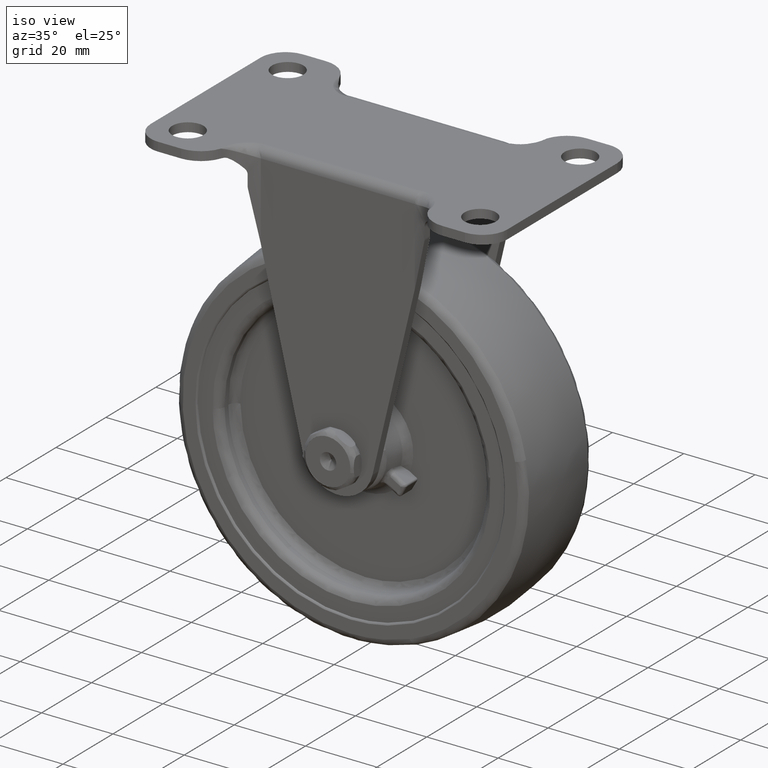
[diagram: clean part render]
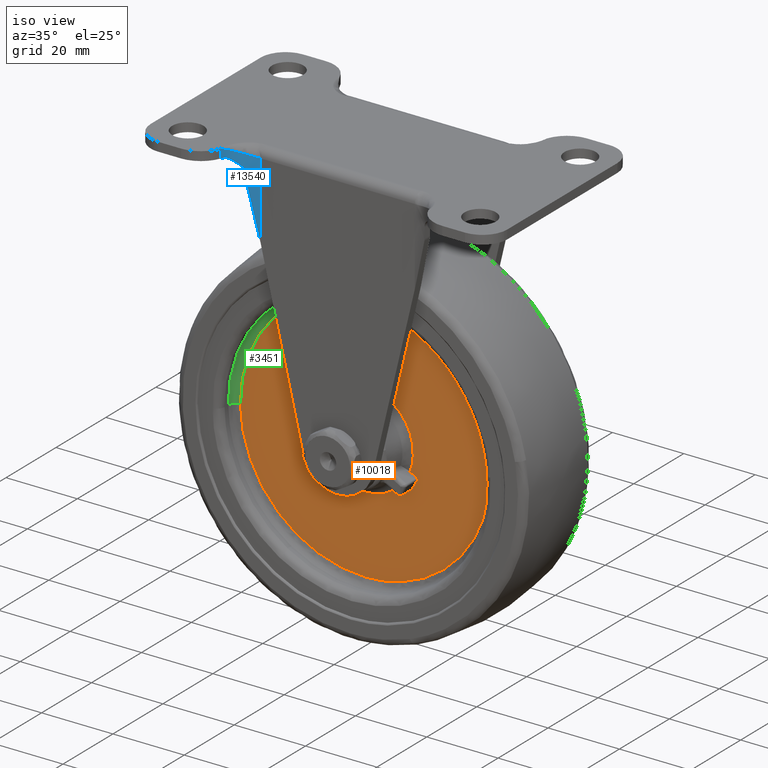
[diagram: same view with three faces highlighted in distinct colors, each labeled with its STEP entity id]
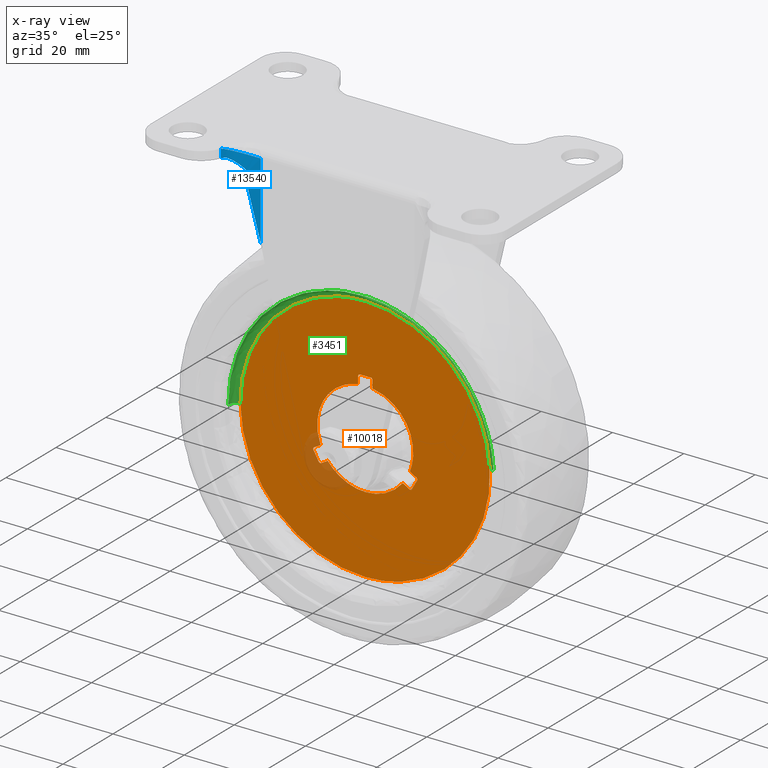
[diagram: x-ray of the same camera — body ghosted, the three highlighted faces saturated]
A machine part, iso view with three faces highlighted in distinct colors.
The next image is the same camera in x-ray (body ghosted, the three faces saturated) — at least one of them is partly hidden behind the body in this view.
Their STEP definitions:

[orange] entity #10018 — the highlighted face is a freeform B-spline surface patch.
#3326=CARTESIAN_POINT('',(2.914197069396246,-7.500000000000001,-67.559378242411384));
#3327=VERTEX_POINT('',#3326);
#3341=CARTESIAN_POINT('',(-32.0,-7.500000000000000,-104.999397000000000));
#3342=VERTEX_POINT('',#3341);
#3343=CARTESIAN_POINT('',(2.914197069396245,-7.500000000000001,-67.559378242411384));
#3344=CARTESIAN_POINT('',(2.999397000000001,-7.500000000000000,-68.778201994177735));
#3345=CARTESIAN_POINT('',(2.999397000000001,-7.500000000000000,-70.0));
#3346=CARTESIAN_POINT('',(2.999397000000001,-7.500000000000000,-104.999396999999990));
#3347=CARTESIAN_POINT('',(-32.0,-7.500000000000000,-104.999397000000000));
#3355=(BOUNDED_CURVE()B_SPLINE_CURVE(2,(#3343,#3344,#3345,#3346,#3347),.UNSPECIFIED.,.F.,.U.)B_SPLINE_CURVE_WITH_KNOTS((3,2,3),(0.237833686531167,0.250000000000000,0.500000000000000),.UNSPECIFIED.)CURVE()GEOMETRIC_REPRESENTATION_ITEM()RATIONAL_B_SPLINE_CURVE((0.972879876378675,0.985746277148080,1.0,0.707106781186548,1.0))REPRESENTATION_ITEM(''));
#3356=EDGE_CURVE('',#3327,#3342,#3355,.T.);
#3358=CARTESIAN_POINT('',(-66.996633628550285,-7.500000000000002,-70.439803820083114));
#3359=VERTEX_POINT('',#3358);
#3360=CARTESIAN_POINT('',(-32.0,-7.500000000000000,-104.999397000000000));
#3361=CARTESIAN_POINT('',(-66.562322074962893,-7.499999999999999,-104.999396999999990));
#3362=CARTESIAN_POINT('',(-66.996633628550285,-7.500000000000002,-70.439803820083114));
#3370=(BOUNDED_CURVE()B_SPLINE_CURVE(2,(#3360,#3361,#3362),.UNSPECIFIED.,.F.,.U.)B_SPLINE_CURVE_WITH_KNOTS((3,3),(0.500000000000000,0.747784295911047),.UNSPECIFIED.)CURVE()GEOMETRIC_REPRESENTATION_ITEM()RATIONAL_B_SPLINE_CURVE((1.0,0.709702639996754,0.994854295619427))REPRESENTATION_ITEM(''));
#3371=EDGE_CURVE('',#3342,#3359,#3370,.T.);
#3418=CARTESIAN_POINT('',(-32.0,-7.500000000000000,-35.000603000000012));
#3419=VERTEX_POINT('',#3418);
#3420=CARTESIAN_POINT('',(-66.996633628550285,-7.500000000000002,-70.439803820083114));
#3421=CARTESIAN_POINT('',(-66.999397000000002,-7.500000000000001,-70.219910591968471));
#3422=CARTESIAN_POINT('',(-66.999397000000002,-7.500000000000000,-70.0));
#3423=CARTESIAN_POINT('',(-66.999397000000016,-7.500000000000000,-35.000602999999998));
#3424=CARTESIAN_POINT('',(-32.0,-7.500000000000000,-35.000603000000012));
#3432=(BOUNDED_CURVE()B_SPLINE_CURVE(2,(#3420,#3421,#3422,#3423,#3424),.UNSPECIFIED.,.F.,.U.)B_SPLINE_CURVE_WITH_KNOTS((3,2,3),(0.747784295911046,0.750000000000000,1.0),.UNSPECIFIED.)CURVE()GEOMETRIC_REPRESENTATION_ITEM()RATIONAL_B_SPLINE_CURVE((0.994854295619427,0.997404141189793,1.0,0.707106781186548,1.0))REPRESENTATION_ITEM(''));
#3433=EDGE_CURVE('',#3359,#3419,#3432,.T.);
#3435=CARTESIAN_POINT('',(-32.0,-7.500000000000000,-35.000603000000012));
#3436=CARTESIAN_POINT('',(0.638227333857972,-7.499999999999999,-35.000603000000012));
#3437=CARTESIAN_POINT('',(2.914197069396246,-7.500000000000001,-67.559378242411384));
#3445=(BOUNDED_CURVE()B_SPLINE_CURVE(2,(#3435,#3436,#3437),.UNSPECIFIED.,.F.,.U.)B_SPLINE_CURVE_WITH_KNOTS((3,3),(0.0,0.237833686531167),.UNSPECIFIED.)CURVE()GEOMETRIC_REPRESENTATION_ITEM()RATIONAL_B_SPLINE_CURVE((1.0,0.721360504038468,0.972879876378675))REPRESENTATION_ITEM(''));
#3446=EDGE_CURVE('',#3419,#3327,#3445,.T.);
#8607=CARTESIAN_POINT('',(-42.534751248458953,-7.500000000000000,-78.391642806324086));
#8608=VERTEX_POINT('',#8607);
#8625=CARTESIAN_POINT('',(-44.360388596062201,-7.500000000000000,-79.445675734139400));
#8626=VERTEX_POINT('',#8625);
#8632=CARTESIAN_POINT('',(-42.534751248458953,-7.500000000000000,-78.391642806324086));
#8633=CARTESIAN_POINT('',(-44.360388596062201,-7.500000000000000,-79.445675734139400));
#8634=QUASI_UNIFORM_CURVE('',1,(#8632,#8633),.UNSPECIFIED.,.F.,.U.);
#8635=EDGE_CURVE('',#8608,#8626,#8634,.T.);
#8647=CARTESIAN_POINT('',(-44.534751579480293,-7.500000000000000,-74.927540532208312));
#8648=VERTEX_POINT('',#8647);
#8660=CARTESIAN_POINT('',(-46.360389294386003,-7.500000000000000,-75.981573692900895));
#8661=VERTEX_POINT('',#8660);
#8662=CARTESIAN_POINT('',(-46.360389294386003,-7.500000000000000,-75.981573692900895));
#8663=CARTESIAN_POINT('',(-44.534751579480293,-7.500000000000000,-74.927540532208312));
#8664=QUASI_UNIFORM_CURVE('',1,(#8662,#8663),.UNSPECIFIED.,.F.,.U.);
#8665=EDGE_CURVE('',#8661,#8648,#8664,.T.);
#8689=CARTESIAN_POINT('',(-46.565563007709287,-7.500000000000000,-76.621508458685994));
#8690=VERTEX_POINT('',#8689);
#8698=CARTESIAN_POINT('',(-46.360389294385982,-7.500000000000000,-75.981573692900923));
#8699=CARTESIAN_POINT('',(-46.753341733993729,-7.500000000000000,-76.208445047792466));
#8700=CARTESIAN_POINT('',(-46.565563007709251,-7.500000000000000,-76.621508458685980));
#8708=(BOUNDED_CURVE()B_SPLINE_CURVE(2,(#8698,#8699,#8700),.UNSPECIFIED.,.F.,.U.)CURVE()GEOMETRIC_REPRESENTATION_ITEM()QUASI_UNIFORM_CURVE()RATIONAL_B_SPLINE_CURVE((1.0,0.740531729840645,1.0))REPRESENTATION_ITEM(''));
#8709=EDGE_CURVE('',#8661,#8690,#8708,.T.);
#8728=CARTESIAN_POINT('',(-45.017175456027999,-7.500000000000000,-79.303394173471389));
#8729=VERTEX_POINT('',#8728);
#8737=CARTESIAN_POINT('',(-46.565563007709301,-7.500000000000000,-76.621508458686009));
#8738=CARTESIAN_POINT('',(-45.921749886360708,-7.500000000000000,-78.037726627507013));
#8739=CARTESIAN_POINT('',(-45.017175456028028,-7.500000000000000,-79.303394173471403));
#8747=(BOUNDED_CURVE()B_SPLINE_CURVE(2,(#8737,#8738,#8739),.UNSPECIFIED.,.F.,.U.)CURVE()GEOMETRIC_REPRESENTATION_ITEM()QUASI_UNIFORM_CURVE()RATIONAL_B_SPLINE_CURVE((1.0,0.995306360363044,1.0))REPRESENTATION_ITEM(''));
#8748=EDGE_CURVE('',#8690,#8729,#8747,.T.);
#8770=CARTESIAN_POINT('',(-45.017175456027992,-7.500000000000000,-79.303394173471375));
#8771=CARTESIAN_POINT('',(-44.753341247709351,-7.499999999999999,-79.672547206971686));
#8772=CARTESIAN_POINT('',(-44.360388596062208,-7.500000000000000,-79.445675734139385));
#8780=(BOUNDED_CURVE()B_SPLINE_CURVE(2,(#8770,#8771,#8772),.UNSPECIFIED.,.F.,.U.)CURVE()GEOMETRIC_REPRESENTATION_ITEM()QUASI_UNIFORM_CURVE()RATIONAL_B_SPLINE_CURVE((1.0,0.740531551029515,1.0))REPRESENTATION_ITEM(''));
#8781=EDGE_CURVE('',#8729,#8626,#8780,.T.);
#9001=CARTESIAN_POINT('',(-34.000000225532247,-7.500000000000000,-56.680816393122498));
#9002=VERTEX_POINT('',#9001);
#9016=CARTESIAN_POINT('',(-34.000000843643953,-7.500000000000000,-54.572751608092787));
#9017=VERTEX_POINT('',#9016);
#9023=CARTESIAN_POINT('',(-34.000000225532247,-7.500000000000000,-56.680816393122498));
#9024=CARTESIAN_POINT('',(-34.000000843643953,-7.500000000000000,-54.572751608092787));
#9025=QUASI_UNIFORM_CURVE('',1,(#9023,#9024),.UNSPECIFIED.,.F.,.U.);
#9026=EDGE_CURVE('',#9002,#9017,#9025,.T.);
#9038=CARTESIAN_POINT('',(-29.999999489329749,-7.500000000000000,-56.680816435938702));
#9039=VERTEX_POINT('',#9038);
#9049=CARTESIAN_POINT('',(-30.000000125467899,-7.500000000000000,-54.572751367259102));
#9050=VERTEX_POINT('',#9049);
#9051=CARTESIAN_POINT('',(-30.000000125467899,-7.500000000000000,-54.572751367259102));
#9052=CARTESIAN_POINT('',(-29.999999489329749,-7.500000000000000,-56.680816435938702));
#9053=QUASI_UNIFORM_CURVE('',1,(#9051,#9052),.UNSPECIFIED.,.F.,.U.);
#9054=EDGE_CURVE('',#9050,#9039,#9053,.T.);
#9078=CARTESIAN_POINT('',(-30.451613032741101,-7.500000000000000,-54.075098185557799));
#9079=VERTEX_POINT('',#9078);
#9087=CARTESIAN_POINT('',(-30.000000125467899,-7.500000000000000,-54.572751367259102));
#9088=CARTESIAN_POINT('',(-30.000000125467903,-7.500000000000000,-54.119008757064911));
#9089=CARTESIAN_POINT('',(-30.451613032741101,-7.500000000000000,-54.075098185557778));
#9097=(BOUNDED_CURVE()B_SPLINE_CURVE(2,(#9087,#9088,#9089),.UNSPECIFIED.,.F.,.U.)CURVE()GEOMETRIC_REPRESENTATION_ITEM()QUASI_UNIFORM_CURVE()RATIONAL_B_SPLINE_CURVE((1.0,0.740531628444593,1.0))REPRESENTATION_ITEM(''));
#9098=EDGE_CURVE('',#9050,#9079,#9097,.T.);
#9117=CARTESIAN_POINT('',(-33.548387967632443,-7.500000000000000,-54.075098282824698));
#9118=VERTEX_POINT('',#9117);
#9126=CARTESIAN_POINT('',(-30.451613032741101,-7.500000000000000,-54.075098185557863));
#9127=CARTESIAN_POINT('',(-32.000000504915413,-7.500000000000000,-53.924547619525015));
#9128=CARTESIAN_POINT('',(-33.548387967632429,-7.500000000000000,-54.075098282824769));
#9136=(BOUNDED_CURVE()B_SPLINE_CURVE(2,(#9126,#9127,#9128),.UNSPECIFIED.,.F.,.U.)CURVE()GEOMETRIC_REPRESENTATION_ITEM()QUASI_UNIFORM_CURVE()RATIONAL_B_SPLINE_CURVE((1.0,0.995306360363044,1.0))REPRESENTATION_ITEM(''));
#9137=EDGE_CURVE('',#9079,#9118,#9136,.T.);
#9159=CARTESIAN_POINT('',(-33.548387967632443,-7.500000000000000,-54.075098282824683));
#9160=CARTESIAN_POINT('',(-34.000000976687097,-7.499999999999999,-54.119008892865807));
#9161=CARTESIAN_POINT('',(-34.000000843643917,-7.500000000000000,-54.572751608092787));
#9169=(BOUNDED_CURVE()B_SPLINE_CURVE(2,(#9159,#9160,#9161),.UNSPECIFIED.,.F.,.U.)CURVE()GEOMETRIC_REPRESENTATION_ITEM()QUASI_UNIFORM_CURVE()RATIONAL_B_SPLINE_CURVE((1.0,0.740531551029544,1.0))REPRESENTATION_ITEM(''));
#9170=EDGE_CURVE('',#9118,#9017,#9169,.T.);
#9385=CARTESIAN_POINT('',(-21.465248931189901,-7.500000000000000,-78.391643031852794));
#9386=VERTEX_POINT('',#9385);
#9400=CARTESIAN_POINT('',(-19.639610580146101,-7.500000000000000,-79.445675090721792));
#9401=VERTEX_POINT('',#9400);
#9402=CARTESIAN_POINT('',(-19.639610580146101,-7.500000000000000,-79.445675090721792));
#9403=CARTESIAN_POINT('',(-21.465248931189901,-7.500000000000000,-78.391643031852794));
#9404=QUASI_UNIFORM_CURVE('',1,(#9402,#9403),.UNSPECIFIED.,.F.,.U.);
#9405=EDGE_CURVE('',#9401,#9386,#9404,.T.);
#9420=CARTESIAN_POINT('',(-19.465248526008800,-7.500000000000000,-74.927540800553103));
#9421=VERTEX_POINT('',#9420);
#9438=CARTESIAN_POINT('',(-17.639610560293850,-7.500000000000000,-75.981572657767501));
#9439=VERTEX_POINT('',#9438);
#9445=CARTESIAN_POINT('',(-19.465248526008800,-7.500000000000000,-74.927540800553103));
#9446=CARTESIAN_POINT('',(-17.639610560293850,-7.500000000000000,-75.981572657767501));
#9447=QUASI_UNIFORM_CURVE('',1,(#9445,#9446),.UNSPECIFIED.,.F.,.U.);
#9448=EDGE_CURVE('',#9421,#9439,#9447,.T.);
#9467=CARTESIAN_POINT('',(-18.982823959549648,-7.500000000000000,-79.303393355756000));
#9468=VERTEX_POINT('',#9467);
#9476=CARTESIAN_POINT('',(-19.639610580146091,-7.500000000000000,-79.445675090721778));
#9477=CARTESIAN_POINT('',(-19.246658003615085,-7.500000000000000,-79.672546208455501));
#9478=CARTESIAN_POINT('',(-18.982823959549680,-7.500000000000000,-79.303393355755972));
#9486=(BOUNDED_CURVE()B_SPLINE_CURVE(2,(#9476,#9477,#9478),.UNSPECIFIED.,.F.,.U.)CURVE()GEOMETRIC_REPRESENTATION_ITEM()QUASI_UNIFORM_CURVE()RATIONAL_B_SPLINE_CURVE((1.0,0.740531729840565,1.0))REPRESENTATION_ITEM(''));
#9487=EDGE_CURVE('',#9401,#9468,#9486,.T.);
#9506=CARTESIAN_POINT('',(-17.434436576339600,-7.500000000000000,-76.621507543703700));
#9507=VERTEX_POINT('',#9506);
#9515=CARTESIAN_POINT('',(-18.982823959549631,-7.500000000000000,-79.303393355756015));
#9516=CARTESIAN_POINT('',(-18.078249608723890,-7.500000000000000,-78.037725752967873));
#9517=CARTESIAN_POINT('',(-17.434436576339561,-7.500000000000000,-76.621507543703729));
#9525=(BOUNDED_CURVE()B_SPLINE_CURVE(2,(#9515,#9516,#9517),.UNSPECIFIED.,.F.,.U.)CURVE()GEOMETRIC_REPRESENTATION_ITEM()QUASI_UNIFORM_CURVE()RATIONAL_B_SPLINE_CURVE((1.0,0.995306360363044,1.0))REPRESENTATION_ITEM(''));
#9526=EDGE_CURVE('',#9468,#9507,#9525,.T.);
#9548=CARTESIAN_POINT('',(-17.434436576339600,-7.500000000000000,-76.621507543703700));
#9549=CARTESIAN_POINT('',(-17.246657775603492,-7.500000000000003,-76.208443900162237));
#9550=CARTESIAN_POINT('',(-17.639610560293839,-7.500000000000000,-75.981572657767487));
#9558=(BOUNDED_CURVE()B_SPLINE_CURVE(2,(#9548,#9549,#9550),.UNSPECIFIED.,.F.,.U.)CURVE()GEOMETRIC_REPRESENTATION_ITEM()QUASI_UNIFORM_CURVE()RATIONAL_B_SPLINE_CURVE((1.0,0.740531551029495,1.0))REPRESENTATION_ITEM(''));
#9559=EDGE_CURVE('',#9507,#9439,#9558,.T.);
#9945=CARTESIAN_POINT('',(-70.492737813097634,-7.500000000000000,-108.495837281727400));
#9946=CARTESIAN_POINT('',(-70.492737813097634,-7.500000000000000,-31.504161466596681));
#9947=CARTESIAN_POINT('',(6.491509576297008,-7.500000000000000,-108.495837281727400));
#9948=CARTESIAN_POINT('',(6.491509576297008,-7.500000000000000,-31.504161466596681));
#9949=B_SPLINE_SURFACE_WITH_KNOTS('',1,1,((#9945,#9947),(#9946,#9948)),.UNSPECIFIED.,.F.,.F.,.U.,(2,2),(2,2),(0.0,76.991675815130662),(0.0,76.984247389394639),.UNSPECIFIED.);
#9950=ORIENTED_EDGE('',*,*,#3433,.F.);
#9951=ORIENTED_EDGE('',*,*,#3371,.F.);
#9952=ORIENTED_EDGE('',*,*,#3356,.F.);
#9953=ORIENTED_EDGE('',*,*,#3446,.F.);
#9954=EDGE_LOOP('',(#9950,#9951,#9952,#9953));
#9955=FACE_OUTER_BOUND('',#9954,.T.);
#9956=CARTESIAN_POINT('',(-44.534751579480329,-7.500000000000000,-74.927540532208326));
#9957=CARTESIAN_POINT('',(-46.909411222130565,-7.500000000000001,-68.886845684164427));
#9958=CARTESIAN_POINT('',(-43.664068242268748,-7.500000000000000,-63.265746894009837));
#9959=CARTESIAN_POINT('',(-40.418725262406923,-7.500000000000001,-57.644648103855253));
#9960=CARTESIAN_POINT('',(-34.000000225532233,-7.500000000000000,-56.680816393122612));
#9968=(BOUNDED_CURVE()B_SPLINE_CURVE(2,(#9956,#9957,#9958,#9959,#9960),.UNSPECIFIED.,.F.,.U.)B_SPLINE_CURVE_WITH_KNOTS((3,2,3),(0.0,0.500000000000000,1.0),.UNSPECIFIED.)CURVE()GEOMETRIC_REPRESENTATION_ITEM()RATIONAL_B_SPLINE_CURVE((1.0,0.900848684017576,1.0,0.900848684017576,1.0))REPRESENTATION_ITEM(''));
#9969=EDGE_CURVE('',#8648,#9002,#9968,.T.);
#9970=ORIENTED_EDGE('',*,*,#9969,.T.);
#9971=ORIENTED_EDGE('',*,*,#9026,.T.);
#9972=ORIENTED_EDGE('',*,*,#9170,.F.);
#9973=ORIENTED_EDGE('',*,*,#9137,.F.);
#9974=ORIENTED_EDGE('',*,*,#9098,.F.);
#9975=ORIENTED_EDGE('',*,*,#9054,.T.);
#9976=CARTESIAN_POINT('',(-29.999999489329760,-7.500000000000000,-56.680816435938773));
#9977=CARTESIAN_POINT('',(-23.581274473088868,-7.500000000000000,-57.644648284083921));
#9978=CARTESIAN_POINT('',(-20.335931613563918,-7.500000000000000,-63.265747143715011));
#9979=CARTESIAN_POINT('',(-17.090588754038965,-7.500000000000000,-68.886846003346108));
#9980=CARTESIAN_POINT('',(-19.465248526008779,-7.500000000000000,-74.927540800553103));
#9988=(BOUNDED_CURVE()B_SPLINE_CURVE(2,(#9976,#9977,#9978,#9979,#9980),.UNSPECIFIED.,.F.,.U.)B_SPLINE_CURVE_WITH_KNOTS((3,2,3),(0.0,0.500000000000000,1.0),.UNSPECIFIED.)CURVE()GEOMETRIC_REPRESENTATION_ITEM()RATIONAL_B_SPLINE_CURVE((1.0,0.900848684017576,1.0,0.900848684017576,1.0))REPRESENTATION_ITEM(''));
#9989=EDGE_CURVE('',#9039,#9421,#9988,.T.);
#9990=ORIENTED_EDGE('',*,*,#9989,.T.);
#9991=ORIENTED_EDGE('',*,*,#9448,.T.);
#9992=ORIENTED_EDGE('',*,*,#9559,.F.);
#9993=ORIENTED_EDGE('',*,*,#9526,.F.);
#9994=ORIENTED_EDGE('',*,*,#9487,.F.);
#9995=ORIENTED_EDGE('',*,*,#9405,.T.);
#9996=CARTESIAN_POINT('',(-21.465248931189858,-7.500000000000000,-78.391643031852823));
#9997=CARTESIAN_POINT('',(-25.509314304780517,-7.500000000000001,-83.468506031751659));
#9998=CARTESIAN_POINT('',(-32.000000144167352,-7.500000000000000,-83.468505962275117));
#9999=CARTESIAN_POINT('',(-38.490685983554187,-7.500000000000001,-83.468505892798603));
#10000=CARTESIAN_POINT('',(-42.534751248459010,-7.500000000000000,-78.391642806324143));
#10008=(BOUNDED_CURVE()B_SPLINE_CURVE(2,(#9996,#9997,#9998,#9999,#10000),.UNSPECIFIED.,.F.,.U.)B_SPLINE_CURVE_WITH_KNOTS((3,2,3),(0.0,0.500000000000000,1.0),.UNSPECIFIED.)CURVE()GEOMETRIC_REPRESENTATION_ITEM()RATIONAL_B_SPLINE_CURVE((1.0,0.900848684017574,1.0,0.900848684017574,1.0))REPRESENTATION_ITEM(''));
#10009=EDGE_CURVE('',#9386,#8608,#10008,.T.);
#10010=ORIENTED_EDGE('',*,*,#10009,.T.);
#10011=ORIENTED_EDGE('',*,*,#8635,.T.);
#10012=ORIENTED_EDGE('',*,*,#8781,.F.);
#10013=ORIENTED_EDGE('',*,*,#8748,.F.);
#10014=ORIENTED_EDGE('',*,*,#8709,.F.);
#10015=ORIENTED_EDGE('',*,*,#8665,.T.);
#10016=EDGE_LOOP('',(#9970,#9971,#9972,#9973,#9974,#9975,#9990,#9991,#9992,#9993,#9994,#9995,#10010,#10011,#10012,#10013,#10014,#10015));
#10017=FACE_BOUND('',#10016,.T.);
#10018=ADVANCED_FACE('',(#9955,#10017),#9949,.F.);

[blue] entity #13540 — the highlighted face is a freeform B-spline surface patch.
#11728=CARTESIAN_POINT('',(-24.746450492839500,-19.148997307606152,61.273261414327301));
#11729=VERTEX_POINT('',#11728);
#11735=CARTESIAN_POINT('',(-24.800000000000001,-19.172222607755099,61.732968363290809));
#11736=VERTEX_POINT('',#11735);
#11737=CARTESIAN_POINT('',(-24.800000000000001,-19.172222607755099,61.732968363290809));
#11738=CARTESIAN_POINT('',(-24.800000000000001,-19.172222607755099,61.577262325133503));
#11739=CARTESIAN_POINT('',(-24.782062493051509,-19.164288705788390,61.424046595016762));
#11740=CARTESIAN_POINT('',(-24.746450492839500,-19.148997307606152,61.273261414327301));
#11741=QUASI_UNIFORM_CURVE('',3,(#11737,#11738,#11739,#11740),.UNSPECIFIED.,.F.,.U.);
#11742=EDGE_CURVE('',#11736,#11729,#11741,.T.);
#11785=CARTESIAN_POINT('',(-24.800000000000001,-19.172222607755099,64.817025480499410));
#11786=VERTEX_POINT('',#11785);
#11792=CARTESIAN_POINT('',(-25.376071416192602,-19.452582276446499,66.221456820300588));
#11793=VERTEX_POINT('',#11792);
#11794=CARTESIAN_POINT('',(-25.376071416192548,-19.452582276446499,66.221456820300588));
#11795=CARTESIAN_POINT('',(-25.288305656293140,-19.405432152018331,66.132472638120461));
#11796=CARTESIAN_POINT('',(-25.208731183071329,-19.364774535838510,66.035233419549286));
#11797=CARTESIAN_POINT('',(-25.102636253345530,-19.312276335594792,65.876741512824367));
#11798=CARTESIAN_POINT('',(-25.069493156734531,-19.296201236842752,65.821794139042723));
#11799=CARTESIAN_POINT('',(-25.023357769710969,-19.274159476466661,65.736044459356251));
#11800=CARTESIAN_POINT('',(-25.008547254347100,-19.267144333266589,65.706834853134112));
#11801=CARTESIAN_POINT('',(-24.980487404518289,-19.253948593113620,65.647951213895155));
#11802=CARTESIAN_POINT('',(-24.967199965806049,-19.247749529894801,65.618214114758516));
#11803=CARTESIAN_POINT('',(-24.904455989459748,-19.218663149374859,65.468070787849186));
#11804=CARTESIAN_POINT('',(-24.865976508506719,-19.201423176839331,65.343335425819348));
#11805=CARTESIAN_POINT('',(-24.826660984099380,-19.183945498531230,65.149132969683237));
#11806=CARTESIAN_POINT('',(-24.816640047322220,-19.179530846128898,65.082953961616624));
#11807=CARTESIAN_POINT('',(-24.803343513357209,-19.173684568972170,64.950432876480775));
#11808=CARTESIAN_POINT('',(-24.800000000000011,-19.172222607755099,64.883877869309046));
#11809=CARTESIAN_POINT('',(-24.800000000000001,-19.172222607755099,64.817025480499410));
#11810=B_SPLINE_CURVE_WITH_KNOTS('',3,(#11794,#11795,#11796,#11797,#11798,#11799,#11800,#11801,#11802,#11803,#11804,#11805,#11806,#11807,#11808,#11809),.UNSPECIFIED.,.F.,.U.,(4,2,2,2,2,2,2,4),(0.0,0.250000000000000,0.374999999999992,0.437499999999999,0.500000000000007,0.750000000000016,0.875000000000008,1.0),.UNSPECIFIED.);
#11811=EDGE_CURVE('',#11793,#11786,#11810,.T.);
#11990=CARTESIAN_POINT('',(-28.316012066761299,-22.168579450770501,69.202211669900592));
#11991=VERTEX_POINT('',#11990);
#11997=CARTESIAN_POINT('',(-29.027976358665100,-23.554338269138050,69.499995999999996));
#11998=VERTEX_POINT('',#11997);
#11999=CARTESIAN_POINT('',(-29.027976358665100,-23.554338269138050,69.499995999999996));
#12000=CARTESIAN_POINT('',(-28.978537739837840,-23.429502215446519,69.499995999999982));
#12001=CARTESIAN_POINT('',(-28.926248092743830,-23.306650537670809,69.496362867878616));
#12002=CARTESIAN_POINT('',(-28.816346603409709,-23.065187501959340,69.478928286822807));
#12003=CARTESIAN_POINT('',(-28.758731087578219,-22.946572110590228,69.465163793347472));
#12004=CARTESIAN_POINT('',(-28.638670202607450,-22.713998409055801,69.423295844131630));
#12005=CARTESIAN_POINT('',(-28.576213961229371,-22.600027696880030,69.395304697051202));
#12006=CARTESIAN_POINT('',(-28.479505253617511,-22.433147516626850,69.337012235574917));
#12007=CARTESIAN_POINT('',(-28.446596457234140,-22.377928373967769,69.314689513206034));
#12008=CARTESIAN_POINT('',(-28.380984711299931,-22.270707176989951,69.263625437939368));
#12009=CARTESIAN_POINT('',(-28.348289864608429,-22.218701855702761,69.234937569468897));
#12010=CARTESIAN_POINT('',(-28.316012066761299,-22.168579450770501,69.202211669900592));
#12011=B_SPLINE_CURVE_WITH_KNOTS('',3,(#11999,#12000,#12001,#12002,#12003,#12004,#12005,#12006,#12007,#12008,#12009,#12010),.UNSPECIFIED.,.F.,.U.,(4,2,2,2,2,4),(0.0,0.250000000000000,0.500000000000000,0.750000000000000,0.875000000000000,1.0),.UNSPECIFIED.);
#12012=EDGE_CURVE('',#11998,#11991,#12011,.T.);
#12121=CARTESIAN_POINT('',(-21.590020418879149,-18.499980000000001,69.500000000000000));
#12122=VERTEX_POINT('',#12121);
#12138=CARTESIAN_POINT('',(-29.102518009696151,-23.749993471923052,72.0));
#12139=VERTEX_POINT('',#12138);
#12152=CARTESIAN_POINT('',(-21.590020418879149,-18.499980000000001,69.500000000000000));
#12153=CARTESIAN_POINT('',(-21.711781143334989,-18.501588315176871,69.501071944868144));
#12154=CARTESIAN_POINT('',(-21.957916386643490,-18.504839470663530,69.503238845665720));
#12155=CARTESIAN_POINT('',(-22.330030730454389,-18.531522098056438,69.520289844050765));
#12156=CARTESIAN_POINT('',(-22.707993547285170,-18.575317882872781,69.547366779071794));
#12157=CARTESIAN_POINT('',(-23.090826168394070,-18.638778897941169,69.585521736295021));
#12158=CARTESIAN_POINT('',(-23.477450627216879,-18.722395735431110,69.634462313198938));
#12159=CARTESIAN_POINT('',(-23.866687284064600,-18.827175287227011,69.694268279607854));
#12160=CARTESIAN_POINT('',(-24.257253923230110,-18.953915082126031,69.764917179816834));
#12161=CARTESIAN_POINT('',(-24.647766335639620,-19.103392166814480,69.846412527738465));
#12162=CARTESIAN_POINT('',(-25.036735796582299,-19.276295399294192,69.938760427256014));
#12163=CARTESIAN_POINT('',(-25.422582909634439,-19.473238762950590,70.041929176621835));
#12164=CARTESIAN_POINT('',(-25.803592711552000,-19.694711202723280,70.156041206724936));
#12165=CARTESIAN_POINT('',(-26.171558866375712,-19.936894088294650,70.278446251848521));
#12166=CARTESIAN_POINT('',(-26.536833983881142,-20.207213383370618,70.414755119525054));
#12167=CARTESIAN_POINT('',(-26.907986784484581,-20.516215257702822,70.569057690410816));
#12168=CARTESIAN_POINT('',(-27.295808460996302,-20.883174700718978,70.747583183118664));
#12169=CARTESIAN_POINT('',(-27.691461186906370,-21.313845332889962,70.950509727599552));
#12170=CARTESIAN_POINT('',(-28.084957130984009,-21.813357904884580,71.177786207434792));
#12171=CARTESIAN_POINT('',(-28.462901003271352,-22.386521870755839,71.429512543266029));
#12172=CARTESIAN_POINT('',(-28.817378516495769,-23.034338473690109,71.705377335596381));
#12173=CARTESIAN_POINT('',(-29.005313332289621,-23.506025116446182,71.899562488771465));
#12174=CARTESIAN_POINT('',(-29.102518009696151,-23.749993471923052,72.0));
#12175=B_SPLINE_CURVE_WITH_KNOTS('',3,(#12152,#12153,#12154,#12155,#12156,#12157,#12158,#12159,#12160,#12161,#12162,#12163,#12164,#12165,#12166,#12167,#12168,#12169,#12170,#12171,#12172,#12173,#12174),.UNSPECIFIED.,.F.,.U.,(4,1,1,1,1,1,1,1,1,1,1,1,1,1,1,1,1,1,1,1,4),(0.0,0.036053217283680,0.072880376228309,0.110510700572668,0.148971582655785,0.188288678264745,0.228486003162911,0.269586029493015,0.311609780639697,0.354576923476005,0.398505857208004,0.443413798272667,0.489316860941036,0.533824184303124,0.583836994325608,0.639366959863031,0.700422420056334,0.767009470176379,0.839132633946430,0.916795297580047,1.0),.UNSPECIFIED.);
#12176=EDGE_CURVE('',#12122,#12139,#12175,.T.);
#12969=CARTESIAN_POINT('',(-21.590020418879149,-18.499980000000001,47.908584445823003));
#12970=VERTEX_POINT('',#12969);
#12971=CARTESIAN_POINT('',(-21.590020418879149,-18.499980000000001,47.908584445823003));
#12972=CARTESIAN_POINT('',(-23.234960101091975,-18.499980086128858,54.873442519763131));
#12973=CARTESIAN_POINT('',(-24.746450492839390,-19.148997307606159,61.273261414327322));
#12981=(BOUNDED_CURVE()B_SPLINE_CURVE(2,(#12971,#12972,#12973),.UNSPECIFIED.,.F.,.U.)CURVE()GEOMETRIC_REPRESENTATION_ITEM()QUASI_UNIFORM_CURVE()RATIONAL_B_SPLINE_CURVE((1.0,0.979508258568555,1.0))REPRESENTATION_ITEM(''));
#12982=EDGE_CURVE('',#12970,#11729,#12981,.T.);
#13021=CARTESIAN_POINT('',(-29.102514943055748,-23.749994594481699,69.499995999999996));
#13022=VERTEX_POINT('',#13021);
#13023=CARTESIAN_POINT('',(-29.027976358664990,-23.554338269138100,69.499995999999996));
#13024=CARTESIAN_POINT('',(-29.066525926514682,-23.651678689158416,69.499995999999996));
#13025=CARTESIAN_POINT('',(-29.102514943055638,-23.749994594481741,69.499995999999996));
#13033=(BOUNDED_CURVE()B_SPLINE_CURVE(2,(#13023,#13024,#13025),.UNSPECIFIED.,.F.,.U.)CURVE()GEOMETRIC_REPRESENTATION_ITEM()QUASI_UNIFORM_CURVE()RATIONAL_B_SPLINE_CURVE((1.0,0.999914376415922,1.0))REPRESENTATION_ITEM(''));
#13034=EDGE_CURVE('',#11998,#13022,#13033,.T.);
#13490=CARTESIAN_POINT('',(-29.187433134382619,-23.994124125151959,47.306299056968577));
#13491=CARTESIAN_POINT('',(-29.187433134382619,-23.994124125151959,72.617342523575786));
#13492=CARTESIAN_POINT('',(-27.264622293626100,-18.164423988314354,47.306299056968577));
#13493=CARTESIAN_POINT('',(-27.264622293626100,-18.164423988314354,72.617342523575786));
#13494=CARTESIAN_POINT('',(-21.135904306216361,-18.512879215819328,47.306299056968577));
#13495=CARTESIAN_POINT('',(-21.135904306216361,-18.512879215819328,72.617342523575786));
#13503=(BOUNDED_SURFACE()B_SPLINE_SURFACE(1,2,((#13490,#13492,#13494),(#13491,#13493,#13495)),.UNSPECIFIED.,.F.,.F.,.U.)B_SPLINE_SURFACE_WITH_KNOTS((2,2),(3,3),(0.0,25.311043466607209),(0.0,10.862536283628019),.UNSPECIFIED.)GEOMETRIC_REPRESENTATION_ITEM()RATIONAL_B_SPLINE_SURFACE(((1.0,0.793353340291235,1.0),(1.0,0.793353340291235,1.0)))REPRESENTATION_ITEM('')SURFACE());
#13504=CARTESIAN_POINT('',(-24.800000000000001,-19.172222607755099,61.732968363290809));
#13505=CARTESIAN_POINT('',(-24.800000000000001,-19.172222607755099,64.817025480499410));
#13506=QUASI_UNIFORM_CURVE('',1,(#13504,#13505),.UNSPECIFIED.,.F.,.U.);
#13507=EDGE_CURVE('',#11736,#11786,#13506,.T.);
#13508=ORIENTED_EDGE('',*,*,#13507,.F.);
#13509=ORIENTED_EDGE('',*,*,#11742,.T.);
#13510=ORIENTED_EDGE('',*,*,#12982,.F.);
#13511=CARTESIAN_POINT('',(-21.590020418879149,-18.499980000000001,47.908584445823003));
#13512=CARTESIAN_POINT('',(-21.590020418879149,-18.499980000000001,69.500000000000000));
#13513=QUASI_UNIFORM_CURVE('',1,(#13511,#13512),.UNSPECIFIED.,.F.,.U.);
#13514=EDGE_CURVE('',#12970,#12122,#13513,.T.);
#13515=ORIENTED_EDGE('',*,*,#13514,.T.);
#13516=ORIENTED_EDGE('',*,*,#12176,.T.);
#13517=CARTESIAN_POINT('',(-29.102514943055748,-23.749994594481699,69.499995999999996));
#13518=CARTESIAN_POINT('',(-29.102518009696151,-23.749993471923052,72.0));
#13519=QUASI_UNIFORM_CURVE('',1,(#13517,#13518),.UNSPECIFIED.,.F.,.U.);
#13520=EDGE_CURVE('',#13022,#12139,#13519,.T.);
#13521=ORIENTED_EDGE('',*,*,#13520,.F.);
#13522=ORIENTED_EDGE('',*,*,#13034,.F.);
#13523=ORIENTED_EDGE('',*,*,#12012,.T.);
#13524=CARTESIAN_POINT('',(-25.376071416192520,-19.452582276446531,66.221456820300673));
#13525=CARTESIAN_POINT('',(-27.196907900987092,-20.430784560797740,68.067571360514265));
#13526=CARTESIAN_POINT('',(-28.316012066761260,-22.168579450770611,69.202211669900635));
#13534=(BOUNDED_CURVE()B_SPLINE_CURVE(2,(#13524,#13525,#13526),.UNSPECIFIED.,.F.,.U.)CURVE()GEOMETRIC_REPRESENTATION_ITEM()QUASI_UNIFORM_CURVE()RATIONAL_B_SPLINE_CURVE((1.0,0.968205710645091,1.0))REPRESENTATION_ITEM(''));
#13535=EDGE_CURVE('',#11793,#11991,#13534,.T.);
#13536=ORIENTED_EDGE('',*,*,#13535,.F.);
#13537=ORIENTED_EDGE('',*,*,#11811,.T.);
#13538=EDGE_LOOP('',(#13508,#13509,#13510,#13515,#13516,#13521,#13522,#13523,#13536,#13537));
#13539=FACE_OUTER_BOUND('',#13538,.T.);
#13540=ADVANCED_FACE('',(#13539),#13503,.F.);

[green] entity #3451 — the highlighted face is a freeform B-spline surface patch.
#873=CARTESIAN_POINT('',(-68.996475683149583,-9.499999996999053,-70.464935898516416));
#874=VERTEX_POINT('',#873);
#888=CARTESIAN_POINT('',(-32.0,-9.500000000000000,-33.000603000000012));
#889=VERTEX_POINT('',#888);
#890=CARTESIAN_POINT('',(-68.996475683149583,-9.499999996999053,-70.464935898516416));
#891=CARTESIAN_POINT('',(-68.999397000000002,-9.500000000000000,-70.232477127043751));
#892=CARTESIAN_POINT('',(-68.999397000000002,-9.500000000000000,-70.0));
#893=CARTESIAN_POINT('',(-68.999397000000002,-9.500000000000000,-33.000603000000005));
#894=CARTESIAN_POINT('',(-32.0,-9.500000000000000,-33.000603000000012));
#902=(BOUNDED_CURVE()B_SPLINE_CURVE(2,(#890,#891,#892,#893,#894),.UNSPECIFIED.,.F.,.U.)B_SPLINE_CURVE_WITH_KNOTS((3,2,3),(0.747784295920260,0.750000000000000,1.0),.UNSPECIFIED.)CURVE()GEOMETRIC_REPRESENTATION_ITEM()RATIONAL_B_SPLINE_CURVE((0.994854295640633,0.997404141200588,1.0,0.707106781186548,1.0))REPRESENTATION_ITEM(''));
#903=EDGE_CURVE('',#874,#889,#902,.T.);
#905=CARTESIAN_POINT('',(4.909328399993521,-9.499999996921240,-67.419911740842934));
#906=VERTEX_POINT('',#905);
#907=CARTESIAN_POINT('',(-32.0,-9.500000000000000,-33.000603000000012));
#908=CARTESIAN_POINT('',(2.503301029115283,-9.500000000000000,-33.000603000000012));
#909=CARTESIAN_POINT('',(4.909328399993521,-9.499999996921240,-67.419911740842934));
#917=(BOUNDED_CURVE()B_SPLINE_CURVE(2,(#907,#908,#909),.UNSPECIFIED.,.F.,.U.)B_SPLINE_CURVE_WITH_KNOTS((3,3),(0.0,0.237833686534982),.UNSPECIFIED.)CURVE()GEOMETRIC_REPRESENTATION_ITEM()RATIONAL_B_SPLINE_CURVE((1.0,0.721360504033998,0.972879876386743))REPRESENTATION_ITEM(''));
#918=EDGE_CURVE('',#889,#906,#917,.T.);
#3326=CARTESIAN_POINT('',(2.914197069396246,-7.500000000000001,-67.559378242411384));
#3327=VERTEX_POINT('',#3326);
#3328=CARTESIAN_POINT('',(4.909328399993521,-9.499999996921240,-67.419911740842934));
#3329=CARTESIAN_POINT('',(4.909328393852129,-7.500000034304701,-67.419911741288743));
#3330=CARTESIAN_POINT('',(2.914197069396245,-7.500000000000003,-67.559378242411384));
#3338=(BOUNDED_CURVE()B_SPLINE_CURVE(2,(#3328,#3329,#3330),.UNSPECIFIED.,.F.,.U.)B_SPLINE_CURVE_WITH_KNOTS((3,3),(-1.725134640124560,-0.274865374307840),.UNSPECIFIED.)CURVE()GEOMETRIC_REPRESENTATION_ITEM()RATIONAL_B_SPLINE_CURVE((0.863472074271547,0.610566963479208,0.863472069237961))REPRESENTATION_ITEM(''));
#3339=EDGE_CURVE('',#906,#3327,#3338,.T.);
#3358=CARTESIAN_POINT('',(-66.996633628550285,-7.500000000000002,-70.439803820083114));
#3359=VERTEX_POINT('',#3358);
#3373=CARTESIAN_POINT('',(-68.996475683149583,-9.499999996999053,-70.464935898516416));
#3374=CARTESIAN_POINT('',(-68.996475677150116,-7.500000067644788,-70.464935898286583));
#3375=CARTESIAN_POINT('',(-66.996633628550285,-7.500000000000002,-70.439803820083114));
#3383=(BOUNDED_CURVE()B_SPLINE_CURVE(2,(#3373,#3374,#3375),.UNSPECIFIED.,.F.,.U.)B_SPLINE_CURVE_WITH_KNOTS((3,3),(-1.725134640204357,-0.274865391402889),.UNSPECIFIED.)CURVE()GEOMETRIC_REPRESENTATION_ITEM()RATIONAL_B_SPLINE_CURVE((0.883342148555036,0.624617230864269,0.883342137277707))REPRESENTATION_ITEM(''));
#3384=EDGE_CURVE('',#874,#3359,#3383,.T.);
#3392=CARTESIAN_POINT('',(-68.991634790115313,-9.639074308142707,-70.464875062703697));
#3393=CARTESIAN_POINT('',(-69.456509852819053,-9.639074308142707,-33.473240272588377));
#3394=CARTESIAN_POINT('',(-32.464875062703712,-9.639074308142707,-33.008365209884666));
#3395=CARTESIAN_POINT('',(2.468302498894940,-9.639074308142707,-32.569358845296335));
#3396=CARTESIAN_POINT('',(4.904498909954790,-9.639074308142707,-67.420249338726620));
#3397=CARTESIAN_POINT('',(-69.151537983760292,-7.344923450185996,-70.466884571274861));
#3398=CARTESIAN_POINT('',(-69.618422555035153,-7.344923450185992,-33.315346587514561));
#3399=CARTESIAN_POINT('',(-32.466884571274875,-7.344923450185996,-32.848462016239708));
#3400=CARTESIAN_POINT('',(2.617298121293509,-7.344923450185994,-32.407557965319668));
#3401=CARTESIAN_POINT('',(5.064025442616859,-7.344923450185994,-67.409097888624800));
#3402=CARTESIAN_POINT('',(-66.857568411092643,-7.504841404684266,-70.438056181965109));
#3403=CARTESIAN_POINT('',(-67.295624593057767,-7.504841404684267,-35.580487770872466));
#3404=CARTESIAN_POINT('',(-32.438056181965102,-7.504841404684266,-35.142431588907336));
#3405=CARTESIAN_POINT('',(0.479808453626880,-7.504841404684265,-34.728751726598801));
#3406=CARTESIAN_POINT('',(2.775459444538718,-7.504841404684266,-67.569076477178882));
#3414=(BOUNDED_SURFACE()B_SPLINE_SURFACE(2,2,((#3392,#3397,#3402),(#3393,#3398,#3403),(#3394,#3399,#3404),(#3395,#3400,#3405),(#3396,#3401,#3406)),.UNSPECIFIED.,.F.,.F.,.U.)B_SPLINE_SURFACE_WITH_KNOTS((3,2,3),(3,3),(0.0,61.294586860580090,120.137390246737000),(0.0,3.644750288053855),.UNSPECIFIED.)GEOMETRIC_REPRESENTATION_ITEM()RATIONAL_B_SPLINE_SURFACE(((0.910479813785262,0.597479367017788,0.910480199740680),(0.643806450461024,0.422481712037324,0.643806723372717),(0.910479813785262,0.597479367017788,0.910480199740680),(0.654473384993993,0.429481618236543,0.654473662427436),(0.889999299481960,0.584039547115289,0.889999676755620)))REPRESENTATION_ITEM('')SURFACE());
#3415=ORIENTED_EDGE('',*,*,#918,.F.);
#3416=ORIENTED_EDGE('',*,*,#903,.F.);
#3417=ORIENTED_EDGE('',*,*,#3384,.T.);
#3418=CARTESIAN_POINT('',(-32.0,-7.500000000000000,-35.000603000000012));
#3419=VERTEX_POINT('',#3418);
#3420=CARTESIAN_POINT('',(-66.996633628550285,-7.500000000000002,-70.439803820083114));
#3421=CARTESIAN_POINT('',(-66.999397000000002,-7.500000000000001,-70.219910591968471));
#3422=CARTESIAN_POINT('',(-66.999397000000002,-7.500000000000000,-70.0));
#3423=CARTESIAN_POINT('',(-66.999397000000016,-7.500000000000000,-35.000602999999998));
#3424=CARTESIAN_POINT('',(-32.0,-7.500000000000000,-35.000603000000012));
#3432=(BOUNDED_CURVE()B_SPLINE_CURVE(2,(#3420,#3421,#3422,#3423,#3424),.UNSPECIFIED.,.F.,.U.)B_SPLINE_CURVE_WITH_KNOTS((3,2,3),(0.747784295911046,0.750000000000000,1.0),.UNSPECIFIED.)CURVE()GEOMETRIC_REPRESENTATION_ITEM()RATIONAL_B_SPLINE_CURVE((0.994854295619427,0.997404141189793,1.0,0.707106781186548,1.0))REPRESENTATION_ITEM(''));
#3433=EDGE_CURVE('',#3359,#3419,#3432,.T.);
#3434=ORIENTED_EDGE('',*,*,#3433,.T.);
#3435=CARTESIAN_POINT('',(-32.0,-7.500000000000000,-35.000603000000012));
#3436=CARTESIAN_POINT('',(0.638227333857972,-7.499999999999999,-35.000603000000012));
#3437=CARTESIAN_POINT('',(2.914197069396246,-7.500000000000001,-67.559378242411384));
#3445=(BOUNDED_CURVE()B_SPLINE_CURVE(2,(#3435,#3436,#3437),.UNSPECIFIED.,.F.,.U.)B_SPLINE_CURVE_WITH_KNOTS((3,3),(0.0,0.237833686531167),.UNSPECIFIED.)CURVE()GEOMETRIC_REPRESENTATION_ITEM()RATIONAL_B_SPLINE_CURVE((1.0,0.721360504038468,0.972879876378675))REPRESENTATION_ITEM(''));
#3446=EDGE_CURVE('',#3419,#3327,#3445,.T.);
#3447=ORIENTED_EDGE('',*,*,#3446,.T.);
#3448=ORIENTED_EDGE('',*,*,#3339,.F.);
#3449=EDGE_LOOP('',(#3415,#3416,#3417,#3434,#3447,#3448));
#3450=FACE_OUTER_BOUND('',#3449,.T.);
#3451=ADVANCED_FACE('',(#3450),#3414,.F.);